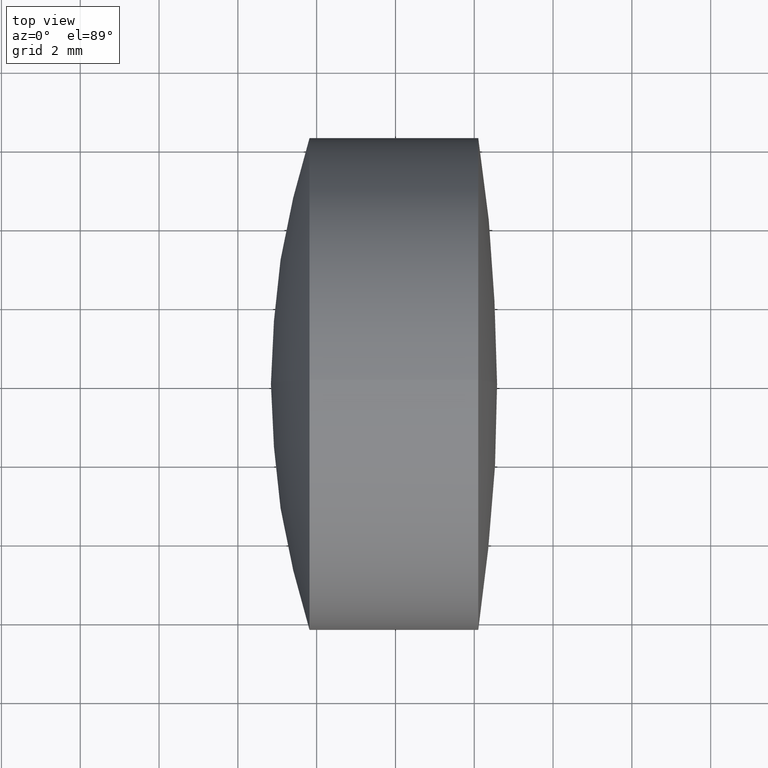
[diagram: clean part render]
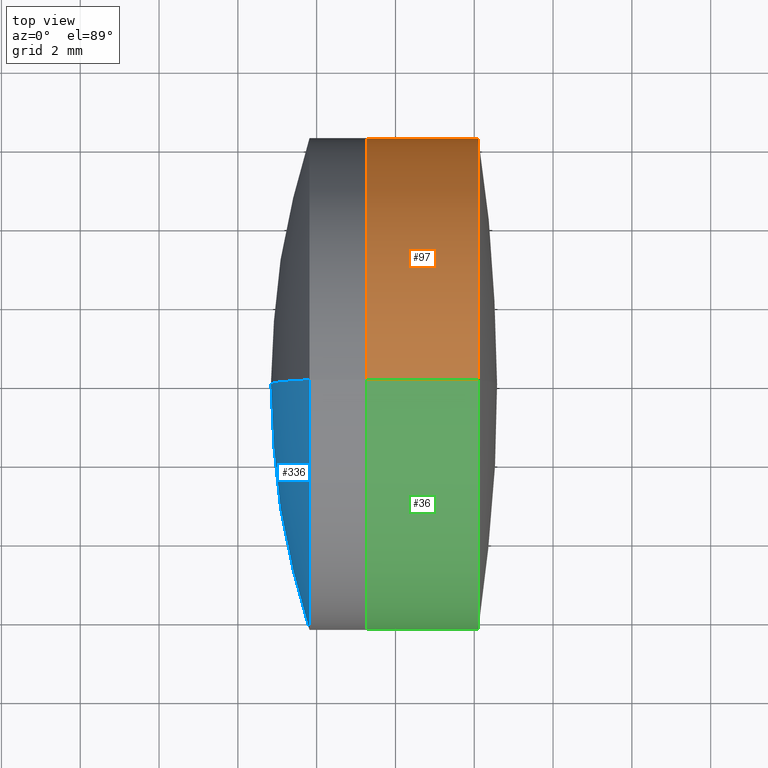
[diagram: same view with three faces highlighted in distinct colors, each labeled with its STEP entity id]
A machine part, top view with three faces highlighted in distinct colors.
Their STEP definitions:

[orange] entity #97 — the highlighted cylindrical surface (partial cylindrical patch) has radius 6.25 mm, axis along (-1, -0, -0).
#16 = EDGE_LOOP ( 'NONE', ( #18, #198, #164, #332 ) ) ;
#18 = ORIENTED_EDGE ( 'NONE', *, *, #272, .T. ) ;
#20 = CARTESIAN_POINT ( 'NONE',  ( 1.272351808119067900, 7.654042494670955600E-016, -6.250000000000000000 ) ) ;
#21 = FACE_OUTER_BOUND ( 'NONE', #16, .T. ) ;
#33 = DIRECTION ( 'NONE',  ( 0.0000000000000000000, 0.0000000000000000000, 1.000000000000000000 ) ) ;
#49 = CARTESIAN_POINT ( 'NONE',  ( -0.5519199926577972300, 0.0000000000000000000, 0.0000000000000000000 ) ) ;
#51 = CIRCLE ( 'NONE', #340, 6.250000000000000900 ) ;
#80 = DIRECTION ( 'NONE',  ( 0.0000000000000000000, 0.0000000000000000000, 1.000000000000000000 ) ) ;
#81 = CARTESIAN_POINT ( 'NONE',  ( -0.5519199926577972300, 0.0000000000000000000, 6.250000000000000000 ) ) ;
#97 = ADVANCED_FACE ( 'NONE', ( #21 ), #107, .T. ) ;
#103 = DIRECTION ( 'NONE',  ( -1.000000000000000000, -0.0000000000000000000, -0.0000000000000000000 ) ) ;
#107 = CYLINDRICAL_SURFACE ( 'NONE', #171, 6.250000000000000000 ) ;
#113 = EDGE_CURVE ( 'NONE', #333, #128, #309, .T. ) ;
#115 = VERTEX_POINT ( 'NONE', #159 ) ;
#128 = VERTEX_POINT ( 'NONE', #20 ) ;
#149 = CARTESIAN_POINT ( 'NONE',  ( 1.272351808119067900, 0.0000000000000000000, 0.0000000000000000000 ) ) ;
#155 = CARTESIAN_POINT ( 'NONE',  ( 4.101398570465201800, 0.0000000000000000000, 0.0000000000000000000 ) ) ;
#159 = CARTESIAN_POINT ( 'NONE',  ( 1.272351808119067900, 0.0000000000000000000, 6.249999999999999100 ) ) ;
#164 = ORIENTED_EDGE ( 'NONE', *, *, #170, .F. ) ;
#170 = EDGE_CURVE ( 'NONE', #115, #128, #185, .T. ) ;
#171 = AXIS2_PLACEMENT_3D ( 'NONE', #49, #187, #80 ) ;
#173 = LINE ( 'NONE', #81, #342 ) ;
#185 = CIRCLE ( 'NONE', #320, 6.249999999999999100 ) ;
#187 = DIRECTION ( 'NONE',  ( -1.000000000000000000, -0.0000000000000000000, -0.0000000000000000000 ) ) ;
#198 = ORIENTED_EDGE ( 'NONE', *, *, #113, .T. ) ;
#215 = DIRECTION ( 'NONE',  ( 0.0000000000000000000, 0.0000000000000000000, 1.000000000000000000 ) ) ;
#220 = DIRECTION ( 'NONE',  ( -1.000000000000000000, -0.0000000000000000000, -0.0000000000000000000 ) ) ;
#224 = VECTOR ( 'NONE', #292, 1000.000000000000000 ) ;
#236 = DIRECTION ( 'NONE',  ( -1.000000000000000000, -0.0000000000000000000, -0.0000000000000000000 ) ) ;
#249 = EDGE_CURVE ( 'NONE', #314, #115, #173, .T. ) ;
#259 = CARTESIAN_POINT ( 'NONE',  ( 4.101398570465201800, 7.654042494670959600E-016, -6.250000000000001800 ) ) ;
#272 = EDGE_CURVE ( 'NONE', #314, #333, #51, .T. ) ;
#292 = DIRECTION ( 'NONE',  ( -1.000000000000000000, -0.0000000000000000000, -0.0000000000000000000 ) ) ;
#296 = CARTESIAN_POINT ( 'NONE',  ( 4.101398570465201800, 0.0000000000000000000, 6.250000000000000900 ) ) ;
#309 = LINE ( 'NONE', #318, #224 ) ;
#314 = VERTEX_POINT ( 'NONE', #296 ) ;
#318 = CARTESIAN_POINT ( 'NONE',  ( -0.5519199926577972300, 7.654042494670957600E-016, -6.250000000000000000 ) ) ;
#320 = AXIS2_PLACEMENT_3D ( 'NONE', #149, #103, #215 ) ;
#332 = ORIENTED_EDGE ( 'NONE', *, *, #249, .F. ) ;
#333 = VERTEX_POINT ( 'NONE', #259 ) ;
#340 = AXIS2_PLACEMENT_3D ( 'NONE', #155, #236, #33 ) ;
#342 = VECTOR ( 'NONE', #220, 1000.000000000000000 ) ;

[blue] entity #336 — the highlighted spherical surface has radius 20.44 mm.
#1 = CARTESIAN_POINT ( 'NONE',  ( -1.161079219261292000, 0.0000000000000000000, 4.320415974280943700E-016 ) ) ;
#26 = CARTESIAN_POINT ( 'NONE',  ( -0.1820940951612623800, 0.0000000000000000000, 6.250000000000002700 ) ) ;
#27 = CARTESIAN_POINT ( 'NONE',  ( 19.27892078073870900, 0.0000000000000000000, -8.195474313005006500E-016 ) ) ;
#32 = CARTESIAN_POINT ( 'NONE',  ( -0.1820940951612623800, 7.654042494670960600E-016, -6.250000000000003600 ) ) ;
#45 = EDGE_CURVE ( 'NONE', #338, #248, #55, .T. ) ;
#47 = DIRECTION ( 'NONE',  ( 0.0000000000000000000, 0.0000000000000000000, -1.000000000000000000 ) ) ;
#52 = CARTESIAN_POINT ( 'NONE',  ( -0.1820940951612632400, 0.0000000000000000000, 0.0000000000000000000 ) ) ;
#55 = CIRCLE ( 'NONE', #254, 20.44000000000000100 ) ;
#59 = FACE_OUTER_BOUND ( 'NONE', #175, .T. ) ;
#65 = ORIENTED_EDGE ( 'NONE', *, *, #45, .F. ) ;
#72 = CARTESIAN_POINT ( 'NONE',  ( 19.27892078073870900, 0.0000000000000000000, -8.195474313005006500E-016 ) ) ;
#84 = DIRECTION ( 'NONE',  ( 0.0000000000000000000, -1.000000000000000000, 0.0000000000000000000 ) ) ;
#118 = SPHERICAL_SURFACE ( 'NONE', #322, 20.44000000000000100 ) ;
#122 = DIRECTION ( 'NONE',  ( 0.0000000000000000000, -1.224646799147353000E-016, 1.000000000000000000 ) ) ;
#133 = CARTESIAN_POINT ( 'NONE',  ( 19.27892078073870900, 0.0000000000000000000, -8.195474313005006500E-016 ) ) ;
#144 = DIRECTION ( 'NONE',  ( -1.000000000000000000, -0.0000000000000000000, -0.0000000000000000000 ) ) ;
#174 = ORIENTED_EDGE ( 'NONE', *, *, #203, .T. ) ;
#175 = EDGE_LOOP ( 'NONE', ( #65, #196, #174 ) ) ;
#196 = ORIENTED_EDGE ( 'NONE', *, *, #324, .T. ) ;
#203 = EDGE_CURVE ( 'NONE', #227, #248, #217, .T. ) ;
#208 = DIRECTION ( 'NONE',  ( -0.0000000000000000000, 1.000000000000000000, 1.224646799147353200E-016 ) ) ;
#217 = CIRCLE ( 'NONE', #221, 20.44000000000000100 ) ;
#221 = AXIS2_PLACEMENT_3D ( 'NONE', #72, #84, #47 ) ;
#227 = VERTEX_POINT ( 'NONE', #26 ) ;
#229 = DIRECTION ( 'NONE',  ( 0.0000000000000000000, 0.0000000000000000000, 1.000000000000000000 ) ) ;
#246 = DIRECTION ( 'NONE',  ( 0.0000000000000000000, 1.000000000000000000, 0.0000000000000000000 ) ) ;
#248 = VERTEX_POINT ( 'NONE', #1 ) ;
#254 = AXIS2_PLACEMENT_3D ( 'NONE', #27, #208, #122 ) ;
#281 = AXIS2_PLACEMENT_3D ( 'NONE', #52, #144, #345 ) ;
#305 = CIRCLE ( 'NONE', #281, 6.249999999999999100 ) ;
#322 = AXIS2_PLACEMENT_3D ( 'NONE', #133, #246, #229 ) ;
#324 = EDGE_CURVE ( 'NONE', #338, #227, #305, .T. ) ;
#336 = ADVANCED_FACE ( 'NONE', ( #59 ), #118, .T. ) ;
#338 = VERTEX_POINT ( 'NONE', #32 ) ;
#345 = DIRECTION ( 'NONE',  ( 0.0000000000000000000, 0.0000000000000000000, 1.000000000000000000 ) ) ;

[green] entity #36 — the highlighted cylindrical surface (partial cylindrical patch) has radius 6.25 mm, axis along (-1, -0, -0).
#6 = DIRECTION ( 'NONE',  ( -1.000000000000000000, -0.0000000000000000000, -0.0000000000000000000 ) ) ;
#17 = CIRCLE ( 'NONE', #180, 6.249999999999999100 ) ;
#20 = CARTESIAN_POINT ( 'NONE',  ( 1.272351808119067900, 7.654042494670955600E-016, -6.250000000000000000 ) ) ;
#22 = DIRECTION ( 'NONE',  ( 0.0000000000000000000, 0.0000000000000000000, 1.000000000000000000 ) ) ;
#28 = ORIENTED_EDGE ( 'NONE', *, *, #139, .T. ) ;
#35 = DIRECTION ( 'NONE',  ( 0.0000000000000000000, 0.0000000000000000000, 1.000000000000000000 ) ) ;
#36 = ADVANCED_FACE ( 'NONE', ( #108 ), #331, .T. ) ;
#39 = CIRCLE ( 'NONE', #169, 6.250000000000000900 ) ;
#62 = AXIS2_PLACEMENT_3D ( 'NONE', #76, #6, #35 ) ;
#76 = CARTESIAN_POINT ( 'NONE',  ( -0.5519199926577972300, 0.0000000000000000000, 0.0000000000000000000 ) ) ;
#79 = EDGE_LOOP ( 'NONE', ( #251, #28, #218, #299 ) ) ;
#81 = CARTESIAN_POINT ( 'NONE',  ( -0.5519199926577972300, 0.0000000000000000000, 6.250000000000000000 ) ) ;
#108 = FACE_OUTER_BOUND ( 'NONE', #79, .T. ) ;
#113 = EDGE_CURVE ( 'NONE', #333, #128, #309, .T. ) ;
#115 = VERTEX_POINT ( 'NONE', #159 ) ;
#126 = DIRECTION ( 'NONE',  ( 0.0000000000000000000, 0.0000000000000000000, 1.000000000000000000 ) ) ;
#128 = VERTEX_POINT ( 'NONE', #20 ) ;
#139 = EDGE_CURVE ( 'NONE', #333, #314, #39, .T. ) ;
#159 = CARTESIAN_POINT ( 'NONE',  ( 1.272351808119067900, 0.0000000000000000000, 6.249999999999999100 ) ) ;
#169 = AXIS2_PLACEMENT_3D ( 'NONE', #178, #181, #126 ) ;
#173 = LINE ( 'NONE', #81, #342 ) ;
#178 = CARTESIAN_POINT ( 'NONE',  ( 4.101398570465201800, 0.0000000000000000000, 0.0000000000000000000 ) ) ;
#180 = AXIS2_PLACEMENT_3D ( 'NONE', #315, #316, #22 ) ;
#181 = DIRECTION ( 'NONE',  ( -1.000000000000000000, -0.0000000000000000000, -0.0000000000000000000 ) ) ;
#218 = ORIENTED_EDGE ( 'NONE', *, *, #249, .T. ) ;
#220 = DIRECTION ( 'NONE',  ( -1.000000000000000000, -0.0000000000000000000, -0.0000000000000000000 ) ) ;
#224 = VECTOR ( 'NONE', #292, 1000.000000000000000 ) ;
#249 = EDGE_CURVE ( 'NONE', #314, #115, #173, .T. ) ;
#251 = ORIENTED_EDGE ( 'NONE', *, *, #113, .F. ) ;
#259 = CARTESIAN_POINT ( 'NONE',  ( 4.101398570465201800, 7.654042494670959600E-016, -6.250000000000001800 ) ) ;
#292 = DIRECTION ( 'NONE',  ( -1.000000000000000000, -0.0000000000000000000, -0.0000000000000000000 ) ) ;
#296 = CARTESIAN_POINT ( 'NONE',  ( 4.101398570465201800, 0.0000000000000000000, 6.250000000000000900 ) ) ;
#299 = ORIENTED_EDGE ( 'NONE', *, *, #326, .F. ) ;
#309 = LINE ( 'NONE', #318, #224 ) ;
#314 = VERTEX_POINT ( 'NONE', #296 ) ;
#315 = CARTESIAN_POINT ( 'NONE',  ( 1.272351808119067900, 0.0000000000000000000, 0.0000000000000000000 ) ) ;
#316 = DIRECTION ( 'NONE',  ( -1.000000000000000000, -0.0000000000000000000, -0.0000000000000000000 ) ) ;
#318 = CARTESIAN_POINT ( 'NONE',  ( -0.5519199926577972300, 7.654042494670957600E-016, -6.250000000000000000 ) ) ;
#326 = EDGE_CURVE ( 'NONE', #128, #115, #17, .T. ) ;
#331 = CYLINDRICAL_SURFACE ( 'NONE', #62, 6.250000000000000000 ) ;
#333 = VERTEX_POINT ( 'NONE', #259 ) ;
#342 = VECTOR ( 'NONE', #220, 1000.000000000000000 ) ;